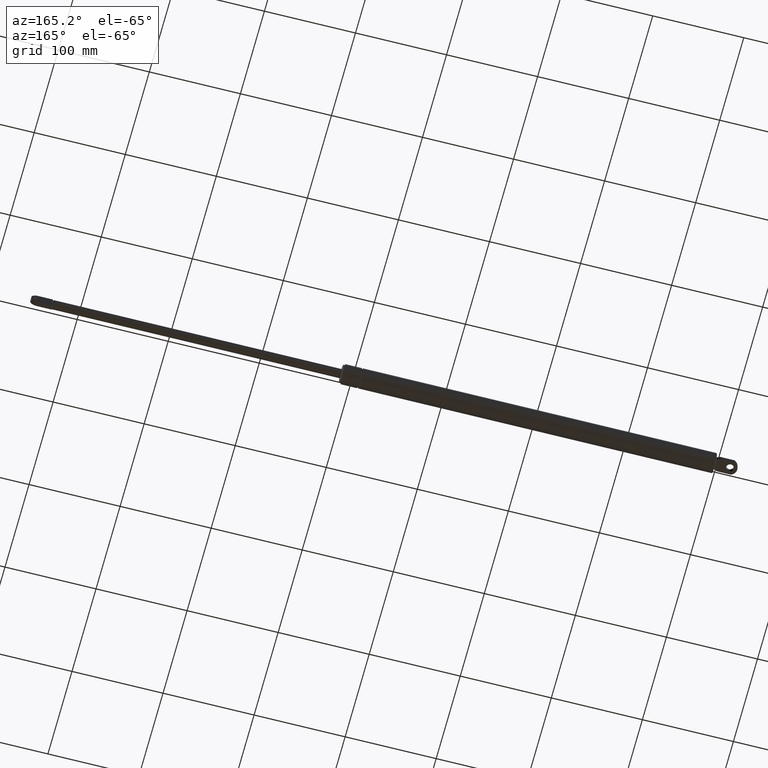
[diagram: clean part render]
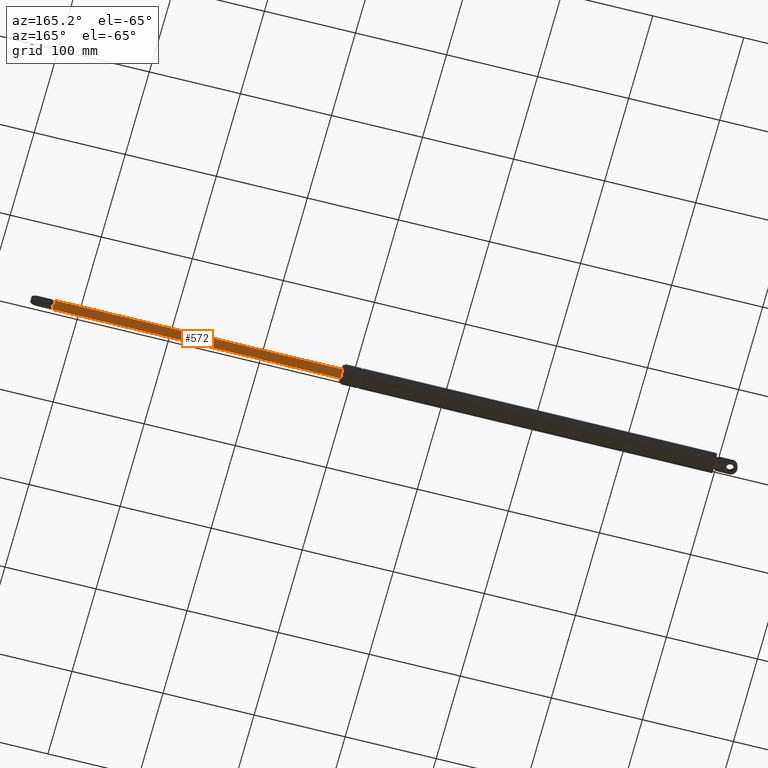
[diagram: same view with one face highlighted and labeled with its STEP entity id]
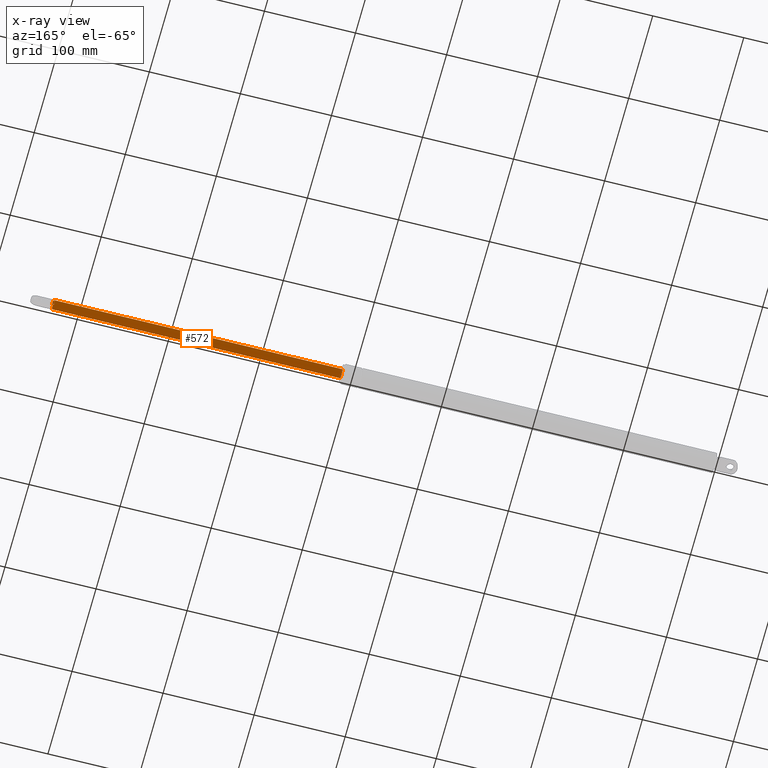
[diagram: x-ray of the same camera — body ghosted, the highlighted face saturated]
A machine part, auxiliary view. The second image highlights one B-rep face of the part: STEP entity #572.
The next image is the same camera in x-ray: the body ghosted, the highlighted face saturated — about 0% of this face is hidden behind the body in this view.
In plain terms, the highlighted cylindrical surface (bore or boss wall) has radius 5 mm, axis along (1, 0, 0).
Its self-contained STEP definition (entity closure, byte-faithful):
#33=FACE_BOUND('',#174,.T.);
#53=LINE('',#878,#89);
#54=LINE('',#880,#90);
#55=LINE('',#884,#91);
#56=LINE('',#888,#92);
#89=VECTOR('',#686,0.999999999999943);
#90=VECTOR('',#687,0.999999999999943);
#91=VECTOR('',#690,0.999999999999943);
#92=VECTOR('',#693,0.999999999999943);
#125=CYLINDRICAL_SURFACE('',#612,5.00000000000001);
#137=FACE_OUTER_BOUND('',#173,.T.);
#173=EDGE_LOOP('',(#391,#392,#393,#394,#395,#396,#397,#398));
#174=EDGE_LOOP('',(#399));
#229=CIRCLE('',#611,5.00000000000001);
#230=CIRCLE('',#613,4.99999999999999);
#231=CIRCLE('',#614,5.00000000000001);
#232=CIRCLE('',#615,4.99999999999999);
#233=CIRCLE('',#616,5.00000000000001);
#263=VERTEX_POINT('',#850);
#266=VERTEX_POINT('',#864);
#267=VERTEX_POINT('',#877);
#268=VERTEX_POINT('',#879);
#269=VERTEX_POINT('',#881);
#270=VERTEX_POINT('',#883);
#271=VERTEX_POINT('',#885);
#272=VERTEX_POINT('',#887);
#273=VERTEX_POINT('',#890);
#319=EDGE_CURVE('',#266,#263,#229,.T.);
#320=EDGE_CURVE('',#263,#267,#53,.T.);
#321=EDGE_CURVE('',#268,#266,#54,.T.);
#322=EDGE_CURVE('',#269,#268,#230,.T.);
#323=EDGE_CURVE('',#270,#269,#55,.T.);
#324=EDGE_CURVE('',#271,#270,#231,.T.);
#325=EDGE_CURVE('',#272,#271,#56,.T.);
#326=EDGE_CURVE('',#267,#272,#232,.T.);
#327=EDGE_CURVE('',#273,#273,#233,.T.);
#391=ORIENTED_EDGE('',*,*,#320,.F.);
#392=ORIENTED_EDGE('',*,*,#319,.F.);
#393=ORIENTED_EDGE('',*,*,#321,.F.);
#394=ORIENTED_EDGE('',*,*,#322,.F.);
#395=ORIENTED_EDGE('',*,*,#323,.F.);
#396=ORIENTED_EDGE('',*,*,#324,.F.);
#397=ORIENTED_EDGE('',*,*,#325,.F.);
#398=ORIENTED_EDGE('',*,*,#326,.F.);
#399=ORIENTED_EDGE('',*,*,#327,.F.);
#572=ADVANCED_FACE('',(#137,#33),#125,.T.);
#611=AXIS2_PLACEMENT_3D('',#875,#682,#683);
#612=AXIS2_PLACEMENT_3D('',#876,#684,#685);
#613=AXIS2_PLACEMENT_3D('',#882,#688,#689);
#614=AXIS2_PLACEMENT_3D('',#886,#691,#692);
#615=AXIS2_PLACEMENT_3D('',#889,#694,#695);
#616=AXIS2_PLACEMENT_3D('',#891,#696,#697);
#682=DIRECTION('center_axis',(1.,1.83697019872103E-16,0.));
#683=DIRECTION('ref_axis',(-1.94289029309403E-16,1.,-1.60812264967664E-16));
#684=DIRECTION('center_axis',(1.,1.83697019872103E-16,0.));
#685=DIRECTION('ref_axis',(0.,1.,0.));
#686=DIRECTION('',(1.,1.83697019872103E-16,0.));
#687=DIRECTION('',(-1.,-1.83697019872103E-16,0.));
#688=DIRECTION('center_axis',(1.,1.83697019872103E-16,0.));
#689=DIRECTION('ref_axis',(0.,0.,1.));
#690=DIRECTION('',(1.,1.83697019872103E-16,0.));
#691=DIRECTION('center_axis',(1.,1.83697019872103E-16,0.));
#692=DIRECTION('ref_axis',(1.94289029309403E-16,-1.,-1.60812264967664E-16));
#693=DIRECTION('',(-1.,-1.83697019872103E-16,0.));
#694=DIRECTION('center_axis',(1.,1.83697019872103E-16,0.));
#695=DIRECTION('ref_axis',(0.,0.,1.));
#696=DIRECTION('center_axis',(-1.,-1.83697019872103E-16,0.));
#697=DIRECTION('ref_axis',(0.,1.,0.));
#850=CARTESIAN_POINT('',(726.,2.5,4.33012701892228));
#864=CARTESIAN_POINT('',(726.,2.5,-4.33012701892228));
#875=CARTESIAN_POINT('Origin',(726.,1.33364036427147E-13,0.));
#876=CARTESIAN_POINT('Origin',(568.,1.04339907287354E-13,0.));
#877=CARTESIAN_POINT('',(727.,2.5,4.33012701892226));
#878=CARTESIAN_POINT('',(568.,2.5,4.33012701892226));
#879=CARTESIAN_POINT('',(727.,2.5,-4.33012701892226));
#880=CARTESIAN_POINT('',(568.,2.5,-4.33012701892226));
#881=CARTESIAN_POINT('',(727.,-2.5,-4.33012701892211));
#882=CARTESIAN_POINT('Origin',(727.,1.33547733447019E-13,0.));
#883=CARTESIAN_POINT('',(726.,-2.5,-4.33012701892213));
#884=CARTESIAN_POINT('',(568.,-2.5,-4.33012701892214));
#885=CARTESIAN_POINT('',(726.,-2.5,4.33012701892213));
#886=CARTESIAN_POINT('Origin',(726.,1.33364036427147E-13,0.));
#887=CARTESIAN_POINT('',(727.,-2.5,4.33012701892211));
#888=CARTESIAN_POINT('',(568.,-2.5,4.33012701892214));
#889=CARTESIAN_POINT('Origin',(727.,1.33547733447019E-13,0.));
#890=CARTESIAN_POINT('',(410.,5.0000000000001,0.));
#891=CARTESIAN_POINT('Origin',(410.,7.53157781475622E-14,0.));